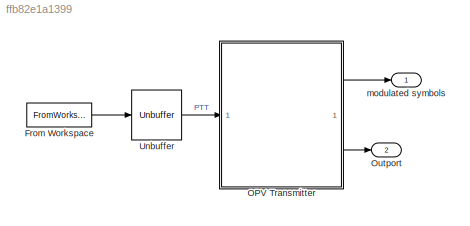
MODEL slx_ffb82e1a1399
KIND model
CONFIG AbsTol = auto
CONFIG EnableMultiTasking = off
CONFIG FixedStep = auto
CONFIG MaxStep = auto
CONFIG MinStep = auto
CONFIG RelTol = 1e-3
CONFIG SampleTimeConstraint = Unconstrained
CONFIG SolverName = VariableStepAuto
CONFIG StartTime = 0.0
CONFIG StopTime = 4*(1/sample_rate)
BLOCK [FromWorkspace] From Workspace
  OutDataTypeStr = boolean
  SampleTime = 1/sample_rate
  VariableName = PTT
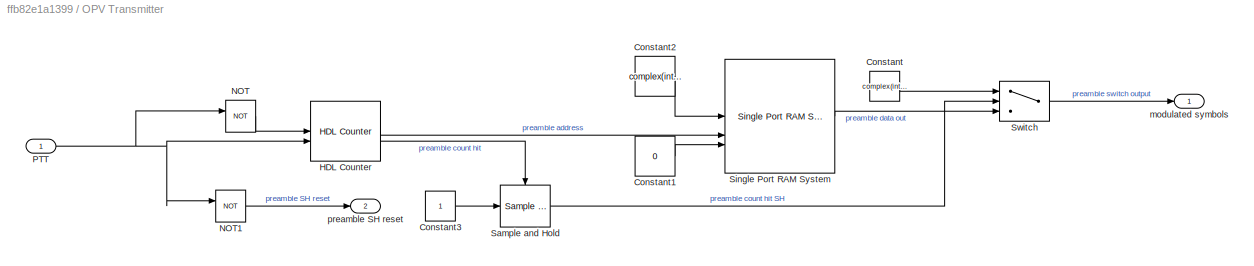
BLOCK [SubSystem] OPV Transmitter
  LibrarySourceBlock = hdlsllib/Ports &\nSubsystems/Subsystem
BLOCK [Constant] OPV Transmitter/Constant
  Value = complex(int16(0), int16(0))
BLOCK [Constant] OPV Transmitter/Constant1
  OutDataTypeStr = boolean
  SampleTime = -1
  Value = 0
  VectorParams1D = off
BLOCK [Constant] OPV Transmitter/Constant2
  OutDataTypeStr = fixdt(1,16,0)
  OutMax = 32767
  OutMin = [-32768]
  SampleTime = -1
  Value = complex(int16(0), int16(0))
  VectorParams1D = off
BLOCK [Constant] OPV Transmitter/Constant3
BLOCK [Reference] OPV Transmitter/HDL Counter  REF=hdlsllib/Sources/HDL Counter
  SourceBlock = hdlsllib/Sources/HDL Counter
  SourceType = HDL Counter
BLOCK [Logic] OPV Transmitter/NOT
  AllPortsSameDT = off
  IconShape = distinctive
  Operator = NOT
  OutDataTypeStr = boolean
BLOCK [Logic] OPV Transmitter/NOT1
  AllPortsSameDT = off
  IconShape = distinctive
  Operator = NOT
  OutDataTypeStr = boolean
BLOCK [Inport] OPV Transmitter/PTT
BLOCK [Reference] OPV Transmitter/Sample and Hold  REF=dspsigops/Sample
and Hold
  LibrarySourceBlock = dsphdlsupportsigops/Sample\nand Hold
  SourceBlock = dspsigops/Sample\nand Hold
  SourceType = Sample and Hold
BLOCK [Reference] OPV Transmitter/Single Port RAM System  REF=hdlsllib/HDL RAMs/Single Port RAM System
  SourceBlock = hdlsllib/HDL RAMs/Single Port RAM System
  SourceType = hdl.RAM
BLOCK [Switch] OPV Transmitter/Switch
  Criteria = u2 > Threshold
  InputSameDT = off
  SaturateOnIntegerOverflow = off
BLOCK [Outport] OPV Transmitter/modulated symbols
BLOCK [Outport] OPV Transmitter/preamble SH reset
  Port = 2
BLOCK [Outport] Outport
  Port = 2
BLOCK [Unbuffer] Unbuffer
BLOCK [Outport] modulated symbols
LINE From Workspace:1 -> Unbuffer:1
LINE OPV Transmitter/Constant1:1 -> OPV Transmitter/Single Port RAM System:3
LINE OPV Transmitter/Constant2:1 -> OPV Transmitter/Single Port RAM System:1
LINE OPV Transmitter/Constant3:1 -> OPV Transmitter/Sample and Hold:1
LINE OPV Transmitter/Constant:1 -> OPV Transmitter/Switch:1
LINE OPV Transmitter/HDL Counter:1 -> OPV Transmitter/Single Port RAM System:2
LINE OPV Transmitter/HDL Counter:2 -> OPV Transmitter/Sample and Hold:trigger
LINE OPV Transmitter/NOT1:1 -> OPV Transmitter/preamble SH reset:1
LINE OPV Transmitter/NOT:1 -> OPV Transmitter/HDL Counter:1
NET OPV Transmitter/PTT:1 -> OPV Transmitter/HDL Counter:2, OPV Transmitter/NOT1:1, OPV Transmitter/NOT:1
LINE OPV Transmitter/Sample and Hold:1 -> OPV Transmitter/Switch:2
LINE OPV Transmitter/Single Port RAM System:1 -> OPV Transmitter/Switch:3
LINE OPV Transmitter/Switch:1 -> OPV Transmitter/modulated symbols:1
LINE OPV Transmitter:1 -> modulated symbols:1
LINE OPV Transmitter:2 -> Outport:1
LINE Unbuffer:1 -> OPV Transmitter:1
note: NET lines group one-source signal fan-out (src -> all destinations, sorted); 1:1 wires keep LINE
